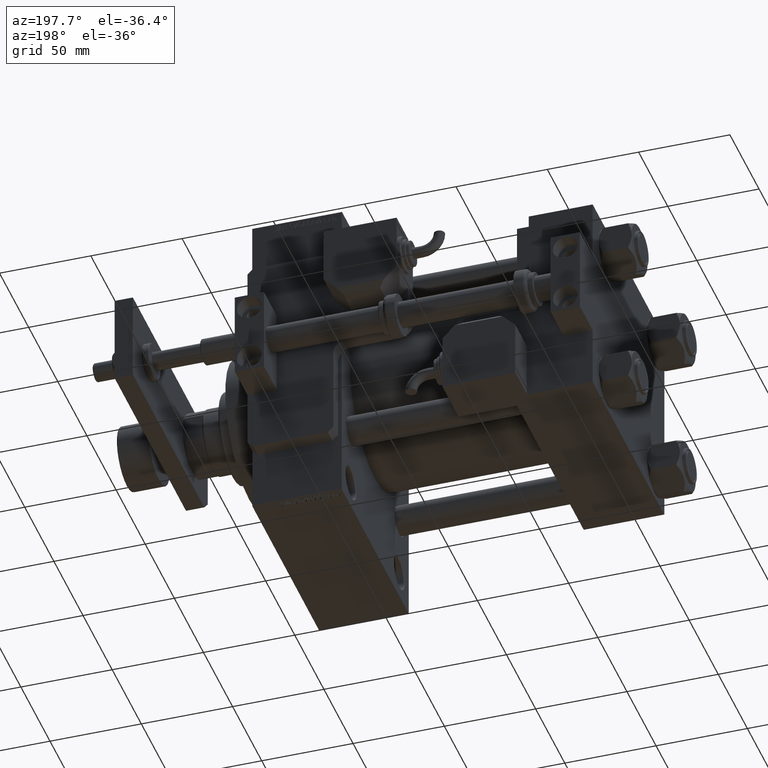
[diagram: clean part render]
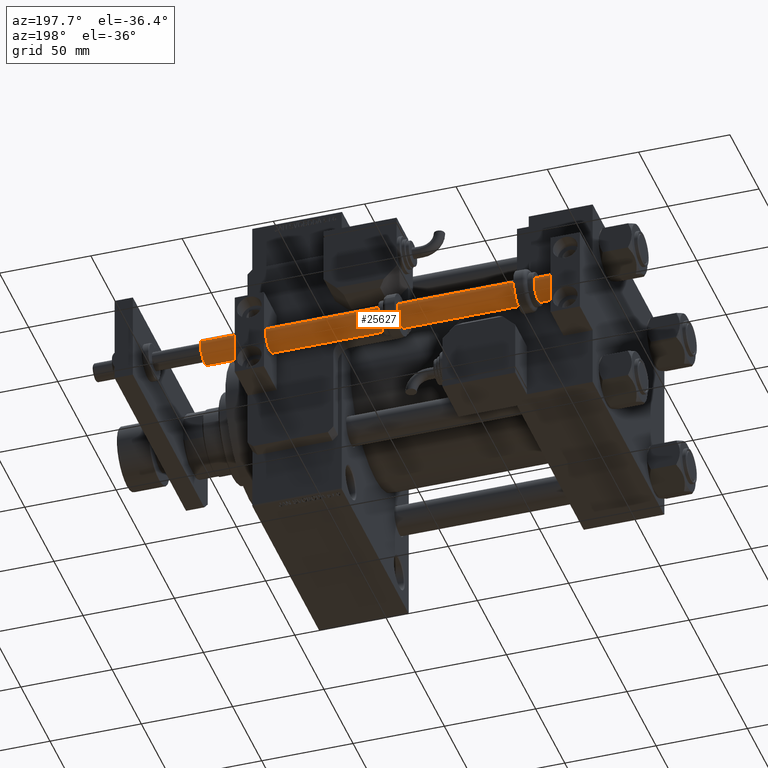
[diagram: same view with one face highlighted and labeled with its STEP entity id]
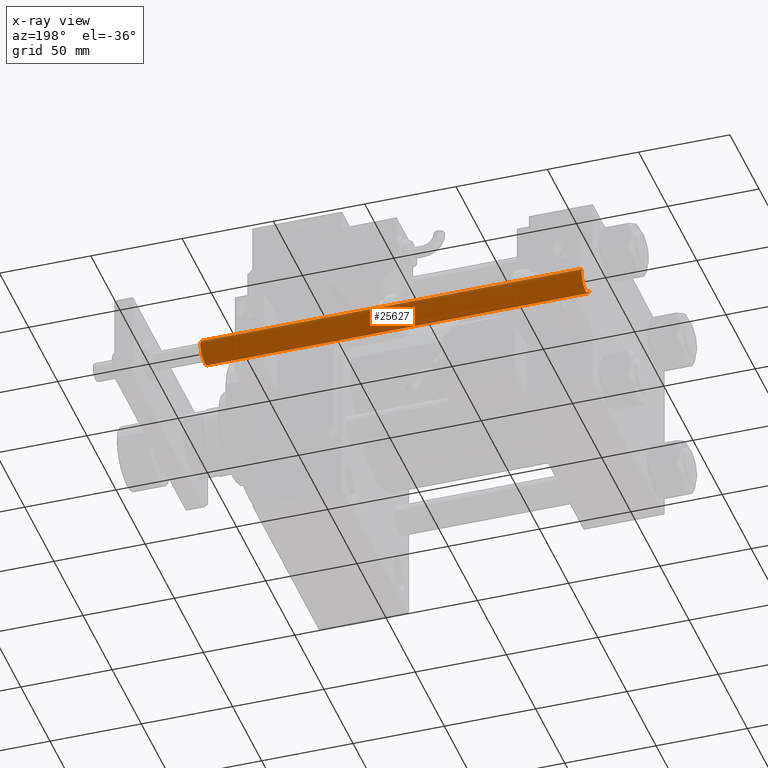
[diagram: x-ray of the same camera — body ghosted, the highlighted face saturated]
A machine part, auxiliary view. The second image highlights one B-rep face of the part: STEP entity #25627.
The next image is the same camera in x-ray: the body ghosted, the highlighted face saturated — about 0% of this face is hidden behind the body in this view.
In plain terms, the highlighted cylindrical surface (edge-blend (fillet) strip) has radius 7 mm, axis along (1, -0, 0).
Its self-contained STEP definition (entity closure, byte-faithful):
#506 = DIRECTION ( 'NONE',  ( -0.000000000000000000, -0.000000000000000000, -1.000000000000000000 ) ) ;
#1981 = CARTESIAN_POINT ( 'NONE',  ( -7.000000000000000000, 0.000000000000000000, 209.0000000000000000 ) ) ;
#2488 = VERTEX_POINT ( 'NONE', #29286 ) ;
#2864 = CARTESIAN_POINT ( 'NONE',  ( -7.000000000000000000, 0.000000000000000000, 0.2999999999999947153 ) ) ;
#6104 = DIRECTION ( 'NONE',  ( -0.000000000000000000, -0.000000000000000000, 1.000000000000000000 ) ) ;
#6132 = CARTESIAN_POINT ( 'NONE',  ( -7.000000000000000000, 0.000000000000000000, 209.0000000000000000 ) ) ;
#6583 = ORIENTED_EDGE ( 'NONE', *, *, #42538, .F. ) ;
#10674 = DIRECTION ( 'NONE',  ( -1.000000000000000000, 0.000000000000000000, 0.000000000000000000 ) ) ;
#13015 = LINE ( 'NONE', #46538, #50534 ) ;
#14200 = VERTEX_POINT ( 'NONE', #1981 ) ;
#15810 = DIRECTION ( 'NONE',  ( -0.000000000000000000, -0.000000000000000000, -1.000000000000000000 ) ) ;
#20832 = CIRCLE ( 'NONE', #38233, 7.000000000000000000 ) ;
#21889 = AXIS2_PLACEMENT_3D ( 'NONE', #31852, #48484, #35393 ) ;
#22688 = DIRECTION ( 'NONE',  ( 1.000000000000000000, 0.000000000000000000, 0.000000000000000000 ) ) ;
#23180 = FACE_OUTER_BOUND ( 'NONE', #29108, .T. ) ;
#25300 = EDGE_CURVE ( 'NONE', #51764, #46400, #20832, .T. ) ;
#25627 = ADVANCED_FACE ( 'NONE', ( #23180 ), #53135, .T. ) ;
#26661 = ORIENTED_EDGE ( 'NONE', *, *, #29669, .F. ) ;
#29108 = EDGE_LOOP ( 'NONE', ( #26661, #51981, #51044, #6583 ) ) ;
#29286 = CARTESIAN_POINT ( 'NONE',  ( 7.000000000000000000, 8.572527594031473190E-16, 209.0000000000000000 ) ) ;
#29669 = EDGE_CURVE ( 'NONE', #2488, #14200, #33158, .T. ) ;
#31852 = CARTESIAN_POINT ( 'NONE',  ( 0.000000000000000000, 0.000000000000000000, 209.0000000000000000 ) ) ;
#33158 = CIRCLE ( 'NONE', #21889, 7.000000000000000000 ) ;
#35393 = DIRECTION ( 'NONE',  ( 1.000000000000000000, 0.000000000000000000, 0.000000000000000000 ) ) ;
#35637 = AXIS2_PLACEMENT_3D ( 'NONE', #43609, #15810, #10674 ) ;
#38233 = AXIS2_PLACEMENT_3D ( 'NONE', #43405, #6104, #22688 ) ;
#42538 = EDGE_CURVE ( 'NONE', #14200, #46400, #50813, .T. ) ;
#43204 = VECTOR ( 'NONE', #43433, 1000.000000000000000 ) ;
#43405 = CARTESIAN_POINT ( 'NONE',  ( 0.000000000000000000, 0.000000000000000000, 0.2999999999999947153 ) ) ;
#43433 = DIRECTION ( 'NONE',  ( -0.000000000000000000, -0.000000000000000000, -1.000000000000000000 ) ) ;
#43609 = CARTESIAN_POINT ( 'NONE',  ( 0.000000000000000000, 0.000000000000000000, 209.0000000000000000 ) ) ;
#46400 = VERTEX_POINT ( 'NONE', #2864 ) ;
#46538 = CARTESIAN_POINT ( 'NONE',  ( 7.000000000000000000, 8.572527594031473190E-16, 209.0000000000000000 ) ) ;
#46719 = CARTESIAN_POINT ( 'NONE',  ( 7.000000000000000000, 8.572527594031473190E-16, 0.2999999999999947153 ) ) ;
#48484 = DIRECTION ( 'NONE',  ( 0.000000000000000000, 0.000000000000000000, 1.000000000000000000 ) ) ;
#50534 = VECTOR ( 'NONE', #506, 1000.000000000000000 ) ;
#50813 = LINE ( 'NONE', #6132, #43204 ) ;
#51044 = ORIENTED_EDGE ( 'NONE', *, *, #25300, .T. ) ;
#51764 = VERTEX_POINT ( 'NONE', #46719 ) ;
#51981 = ORIENTED_EDGE ( 'NONE', *, *, #53553, .T. ) ;
#53135 = CYLINDRICAL_SURFACE ( 'NONE', #35637, 7.000000000000000000 ) ;
#53553 = EDGE_CURVE ( 'NONE', #2488, #51764, #13015, .T. ) ;